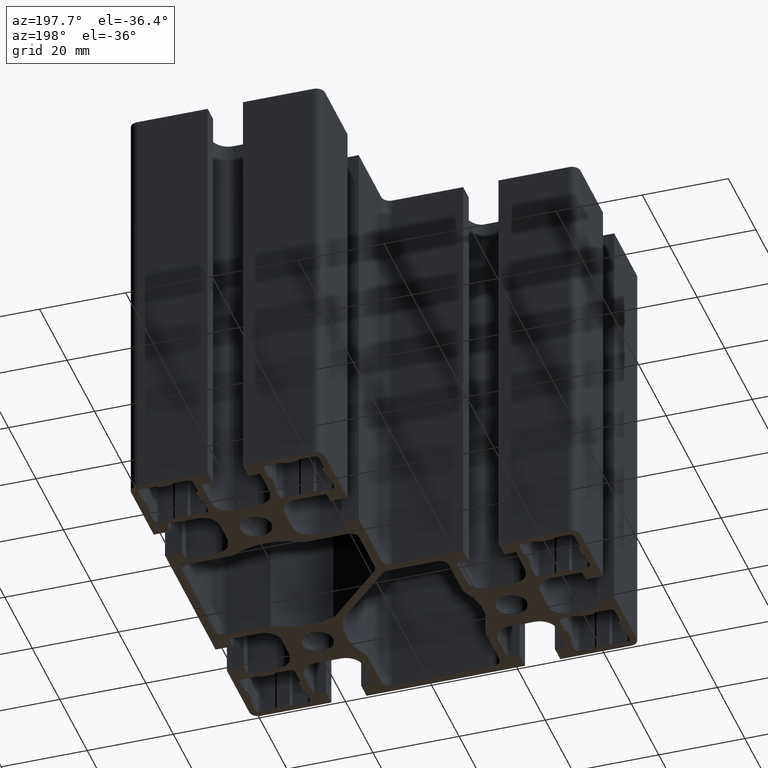
[diagram: clean part render]
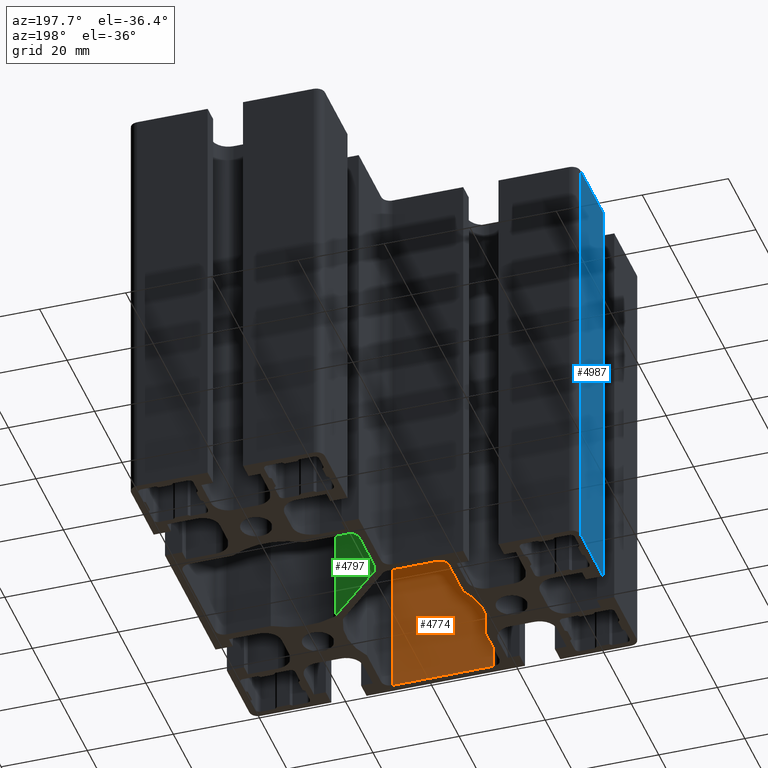
[diagram: same view with three faces highlighted in distinct colors, each labeled with its STEP entity id]
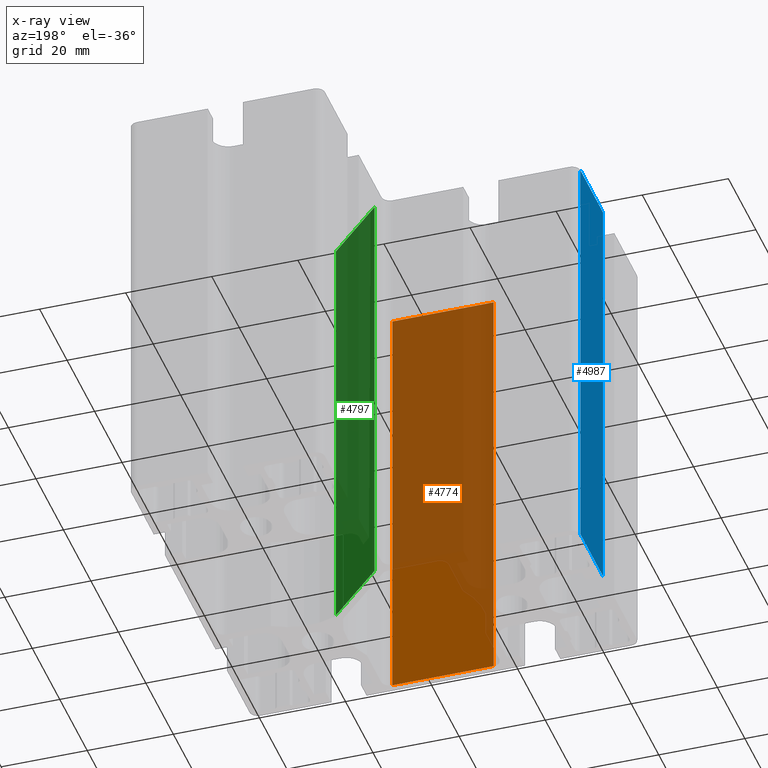
[diagram: x-ray of the same camera — body ghosted, the three highlighted faces saturated]
A machine part, auxiliary view with three faces highlighted in distinct colors.
The next image is the same camera in x-ray (body ghosted, the three faces saturated) — at least one of them is partly hidden behind the body in this view.
Their STEP definitions:

[orange] entity #4774 — the highlighted planar face has unit normal (0, -1, 0).
#220=FACE_OUTER_BOUND('',#464,.T.);
#464=EDGE_LOOP('',(#3150,#3151,#3152,#3153));
#733=LINE('',#6729,#1336);
#734=LINE('',#6733,#1337);
#735=LINE('',#6735,#1338);
#736=LINE('',#6736,#1339);
#1336=VECTOR('',#5394,100.);
#1337=VECTOR('',#5399,23.5);
#1338=VECTOR('',#5400,100.);
#1339=VECTOR('',#5401,23.5);
#1939=VERTEX_POINT('',#6726);
#1940=VERTEX_POINT('',#6728);
#1941=VERTEX_POINT('',#6732);
#1942=VERTEX_POINT('',#6734);
#2424=EDGE_CURVE('',#1939,#1940,#733,.T.);
#2426=EDGE_CURVE('',#1941,#1939,#734,.T.);
#2427=EDGE_CURVE('',#1941,#1942,#735,.T.);
#2428=EDGE_CURVE('',#1940,#1942,#736,.T.);
#3150=ORIENTED_EDGE('',*,*,#2424,.F.);
#3151=ORIENTED_EDGE('',*,*,#2426,.F.);
#3152=ORIENTED_EDGE('',*,*,#2427,.T.);
#3153=ORIENTED_EDGE('',*,*,#2428,.F.);
#4589=PLANE('',#5022);
#4774=ADVANCED_FACE('',(#220),#4589,.F.);
#5022=AXIS2_PLACEMENT_3D('',#6731,#5397,#5398);
#5394=DIRECTION('',(0.,0.,1.));
#5397=DIRECTION('center_axis',(0.,-1.,0.));
#5398=DIRECTION('ref_axis',(1.,0.,0.));
#5399=DIRECTION('',(1.,0.,0.));
#5400=DIRECTION('',(0.,0.,1.));
#5401=DIRECTION('',(-1.,0.,0.));
#6726=CARTESIAN_POINT('',(-10.75,-20.4999999999991,-50.));
#6728=CARTESIAN_POINT('',(-10.75,-20.4999999999991,50.));
#6729=CARTESIAN_POINT('',(-10.75,-20.4999999999991,0.));
#6731=CARTESIAN_POINT('Origin',(-34.25,-20.4999999999991,0.));
#6732=CARTESIAN_POINT('',(-34.25,-20.4999999999991,-50.));
#6733=CARTESIAN_POINT('',(-25.5212966227895,-20.4999999999991,-50.));
#6734=CARTESIAN_POINT('',(-34.25,-20.4999999999991,50.));
#6735=CARTESIAN_POINT('',(-34.25,-20.4999999999991,0.));
#6736=CARTESIAN_POINT('',(-25.5212966227895,-20.4999999999991,50.));

[blue] entity #4987 — the highlighted planar face has unit normal (-1, 0, 0).
#433=FACE_OUTER_BOUND('',#690,.T.);
#690=EDGE_LOOP('',(#4234,#4235,#4236,#4237));
#1150=LINE('',#7742,#1753);
#1284=LINE('',#8055,#1887);
#1285=LINE('',#8058,#1888);
#1286=LINE('',#8059,#1889);
#1753=VECTOR('',#6283,16.4000000000001);
#1887=VECTOR('',#6593,100.);
#1888=VECTOR('',#6596,16.4000000000001);
#1889=VECTOR('',#6597,100.);
#2299=VERTEX_POINT('',#7739);
#2300=VERTEX_POINT('',#7741);
#2391=VERTEX_POINT('',#8053);
#2392=VERTEX_POINT('',#8057);
#2929=EDGE_CURVE('',#2299,#2300,#1150,.T.);
#3086=EDGE_CURVE('',#2299,#2391,#1284,.T.);
#3087=EDGE_CURVE('',#2392,#2391,#1285,.T.);
#3088=EDGE_CURVE('',#2300,#2392,#1286,.T.);
#4234=ORIENTED_EDGE('',*,*,#3086,.T.);
#4235=ORIENTED_EDGE('',*,*,#3087,.F.);
#4236=ORIENTED_EDGE('',*,*,#3088,.F.);
#4237=ORIENTED_EDGE('',*,*,#2929,.F.);
#4751=PLANE('',#5345);
#4987=ADVANCED_FACE('',(#433),#4751,.T.);
#5345=AXIS2_PLACEMENT_3D('',#8056,#6594,#6595);
#6283=DIRECTION('',(0.,1.,0.));
#6593=DIRECTION('',(0.,0.,1.));
#6594=DIRECTION('center_axis',(-1.,0.,0.));
#6595=DIRECTION('ref_axis',(0.,-1.,0.));
#6596=DIRECTION('',(0.,-1.,0.));
#6597=DIRECTION('',(0.,0.,1.));
#7739=CARTESIAN_POINT('',(-67.5,4.1000000000016,-50.));
#7741=CARTESIAN_POINT('',(-67.5,20.5000000000017,-50.));
#7742=CARTESIAN_POINT('',(-67.5,20.5000000000017,-50.));
#8053=CARTESIAN_POINT('',(-67.5,4.1000000000016,50.));
#8055=CARTESIAN_POINT('',(-67.5,4.1000000000016,0.));
#8056=CARTESIAN_POINT('Origin',(-67.5,20.5000000000017,0.));
#8057=CARTESIAN_POINT('',(-67.5,20.5000000000017,50.));
#8058=CARTESIAN_POINT('',(-67.5,20.5000000000017,50.));
#8059=CARTESIAN_POINT('',(-67.5,20.5000000000017,0.));

[green] entity #4797 — the highlighted planar face has unit normal (-0.7071, -0.7071, 0).
#243=FACE_OUTER_BOUND('',#487,.T.);
#487=EDGE_LOOP('',(#3242,#3243,#3244,#3245));
#754=LINE('',#6797,#1357);
#776=LINE('',#6867,#1379);
#777=LINE('',#6870,#1380);
#778=LINE('',#6871,#1381);
#1357=VECTOR('',#5465,100.);
#1379=VECTOR('',#5535,100.);
#1380=VECTOR('',#5540,18.6691738298286);
#1381=VECTOR('',#5541,18.6691738298286);
#1961=VERTEX_POINT('',#6795);
#1962=VERTEX_POINT('',#6796);
#1985=VERTEX_POINT('',#6864);
#1986=VERTEX_POINT('',#6866);
#2458=EDGE_CURVE('',#1961,#1962,#754,.T.);
#2493=EDGE_CURVE('',#1985,#1986,#776,.T.);
#2495=EDGE_CURVE('',#1962,#1985,#777,.T.);
#2496=EDGE_CURVE('',#1986,#1961,#778,.T.);
#3242=ORIENTED_EDGE('',*,*,#2493,.F.);
#3243=ORIENTED_EDGE('',*,*,#2495,.F.);
#3244=ORIENTED_EDGE('',*,*,#2458,.F.);
#3245=ORIENTED_EDGE('',*,*,#2496,.F.);
#4599=PLANE('',#5071);
#4797=ADVANCED_FACE('',(#243),#4599,.F.);
#5071=AXIS2_PLACEMENT_3D('',#6869,#5538,#5539);
#5465=DIRECTION('',(0.,0.,-1.));
#5535=DIRECTION('',(0.,0.,1.));
#5538=DIRECTION('center_axis',(-0.707106781186544,-0.707106781186551,0.));
#5539=DIRECTION('ref_axis',(0.707106781186551,-0.707106781186544,0.));
#5540=DIRECTION('',(0.707106781186551,-0.707106781186544,0.));
#5541=DIRECTION('',(-0.707106781186551,0.707106781186544,0.));
#6795=CARTESIAN_POINT('',(-19.914213562373,21.3284271247474,50.));
#6796=CARTESIAN_POINT('',(-19.914213562373,21.3284271247474,-50.));
#6797=CARTESIAN_POINT('',(-19.914213562373,21.3284271247474,0.));
#6864=CARTESIAN_POINT('',(-6.71311414815071,8.12732771052523,-50.));
#6866=CARTESIAN_POINT('',(-6.71311414815071,8.12732771052523,50.));
#6867=CARTESIAN_POINT('',(-6.71311414815071,8.12732771052523,0.));
#6869=CARTESIAN_POINT('Origin',(-19.914213562373,21.3284271247474,0.));
#6870=CARTESIAN_POINT('',(-17.9936790832033,19.4078926455777,-50.));
#6871=CARTESIAN_POINT('',(-17.9936790832033,19.4078926455777,50.));